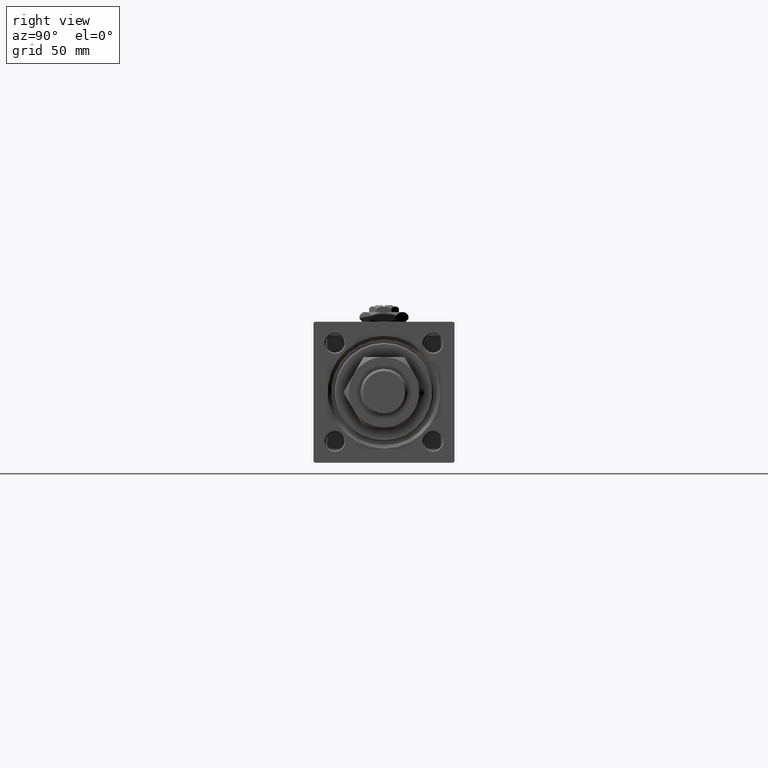
[diagram: clean part render]
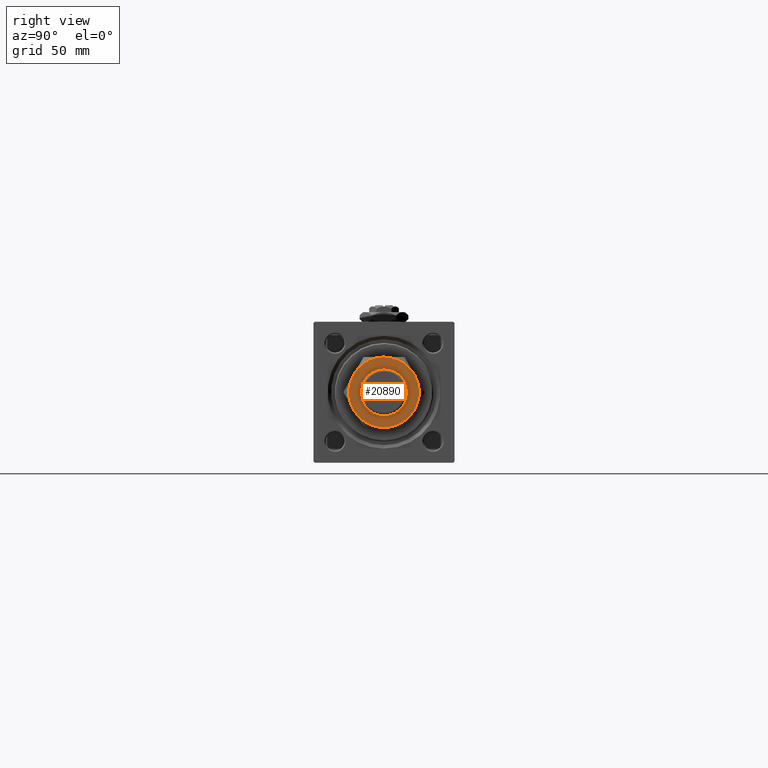
[diagram: same view with one face highlighted and labeled with its STEP entity id]
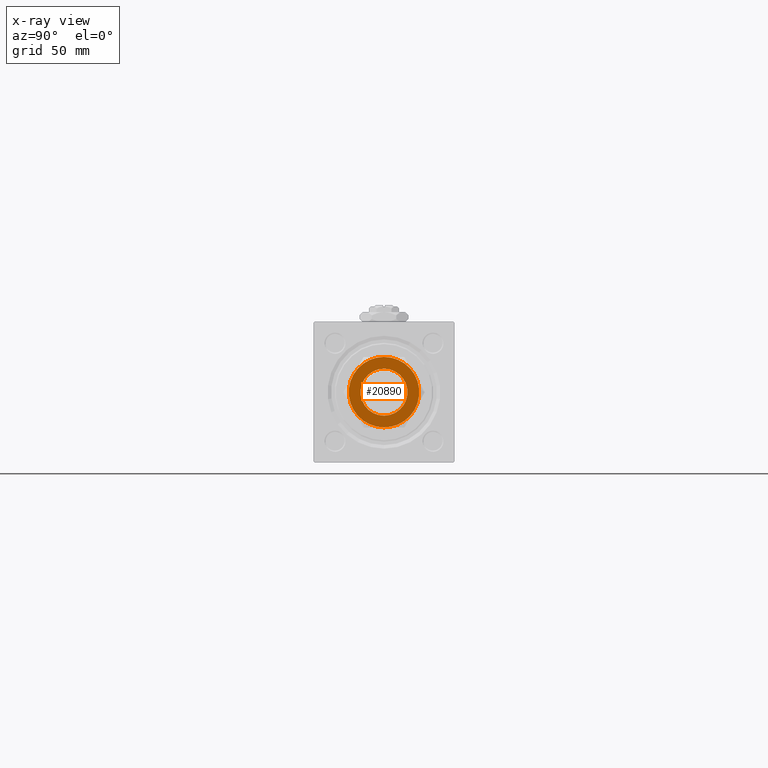
[diagram: x-ray of the same camera — body ghosted, the highlighted face saturated]
A machine part, right view. The second image highlights one B-rep face of the part: STEP entity #20890.
The next image is the same camera in x-ray: the body ghosted, the highlighted face saturated — about 0% of this face is hidden behind the body in this view.
In plain terms, the highlighted planar face has unit normal (1, 0, 0).
Its self-contained STEP definition (entity closure, byte-faithful):
#438 = DIRECTION ( 'NONE',  ( -0.000000000000000000, 0.000000000000000000, -1.000000000000000000 ) ) ;
#696 = DIRECTION ( 'NONE',  ( 1.000000000000000000, 0.000000000000000000, 0.000000000000000000 ) ) ;
#3337 = AXIS2_PLACEMENT_3D ( 'NONE', #32027, #31491, #23370 ) ;
#4751 = CARTESIAN_POINT ( 'NONE',  ( 0.000000000000000000, 0.000000000000000000, 25.00000000000000000 ) ) ;
#5700 = CARTESIAN_POINT ( 'NONE',  ( 14.99999999999999645, 1.502314598737159426E-15, 25.00000000000000000 ) ) ;
#6322 = VERTEX_POINT ( 'NONE', #32133 ) ;
#7202 = DIRECTION ( 'NONE',  ( 1.000000000000000000, 0.000000000000000000, 0.000000000000000000 ) ) ;
#8336 = CIRCLE ( 'NONE', #19613, 14.99999999999999645 ) ;
#8884 = EDGE_CURVE ( 'NONE', #47906, #29441, #50029, .T. ) ;
#9801 = ORIENTED_EDGE ( 'NONE', *, *, #43509, .T. ) ;
#9947 = CIRCLE ( 'NONE', #17712, 9.999999999999998224 ) ;
#10060 = EDGE_CURVE ( 'NONE', #25706, #11389, #29351, .T. ) ;
#10208 = ORIENTED_EDGE ( 'NONE', *, *, #28594, .T. ) ;
#11003 = DIRECTION ( 'NONE',  ( 0.000000000000000000, 0.000000000000000000, 1.000000000000000000 ) ) ;
#11389 = VERTEX_POINT ( 'NONE', #41838 ) ;
#12640 = CARTESIAN_POINT ( 'NONE',  ( 0.000000000000000000, 0.000000000000000000, 25.00000000000000000 ) ) ;
#12707 = EDGE_LOOP ( 'NONE', ( #10208, #12731, #47511, #9801, #47294, #21138 ) ) ;
#12731 = ORIENTED_EDGE ( 'NONE', *, *, #41350, .T. ) ;
#12911 = DIRECTION ( 'NONE',  ( 1.000000000000000000, 0.000000000000000000, 0.000000000000000000 ) ) ;
#13439 = DIRECTION ( 'NONE',  ( 1.000000000000000000, 0.000000000000000000, 0.000000000000000000 ) ) ;
#14028 = DIRECTION ( 'NONE',  ( 0.000000000000000000, -0.000000000000000000, 1.000000000000000000 ) ) ;
#14376 = CARTESIAN_POINT ( 'NONE',  ( 0.000000000000000000, 0.000000000000000000, 25.00000000000000000 ) ) ;
#17712 = AXIS2_PLACEMENT_3D ( 'NONE', #25136, #25942, #34321 ) ;
#18101 = FACE_OUTER_BOUND ( 'NONE', #12707, .T. ) ;
#18191 = DIRECTION ( 'NONE',  ( 0.000000000000000000, -0.000000000000000000, 1.000000000000000000 ) ) ;
#18778 = VERTEX_POINT ( 'NONE', #5700 ) ;
#19471 = EDGE_LOOP ( 'NONE', ( #46274, #52038 ) ) ;
#19613 = AXIS2_PLACEMENT_3D ( 'NONE', #28893, #33479, #13439 ) ;
#19794 = VERTEX_POINT ( 'NONE', #51686 ) ;
#19810 = CIRCLE ( 'NONE', #52653, 14.99999999999999645 ) ;
#20127 = VERTEX_POINT ( 'NONE', #29344 ) ;
#20890 = ADVANCED_FACE ( 'NONE', ( #38657, #18101 ), #34610, .T. ) ;
#21138 = ORIENTED_EDGE ( 'NONE', *, *, #8884, .T. ) ;
#23370 = DIRECTION ( 'NONE',  ( 1.000000000000000000, 0.000000000000000000, 0.000000000000000000 ) ) ;
#24395 = AXIS2_PLACEMENT_3D ( 'NONE', #36180, #44317, #39995 ) ;
#24511 = EDGE_CURVE ( 'NONE', #11389, #25706, #9947, .T. ) ;
#25136 = CARTESIAN_POINT ( 'NONE',  ( 0.000000000000000000, 0.000000000000000000, 25.00000000000000000 ) ) ;
#25706 = VERTEX_POINT ( 'NONE', #31075 ) ;
#25942 = DIRECTION ( 'NONE',  ( -0.000000000000000000, 0.000000000000000000, -1.000000000000000000 ) ) ;
#28594 = EDGE_CURVE ( 'NONE', #29441, #18778, #8336, .T. ) ;
#28893 = CARTESIAN_POINT ( 'NONE',  ( 0.000000000000000000, 0.000000000000000000, 25.00000000000000000 ) ) ;
#29344 = CARTESIAN_POINT ( 'NONE',  ( -7.500000000000000000, 12.99038105676657651, 25.00000000000000000 ) ) ;
#29351 = CIRCLE ( 'NONE', #34545, 9.999999999999998224 ) ;
#29441 = VERTEX_POINT ( 'NONE', #33134 ) ;
#30181 = AXIS2_PLACEMENT_3D ( 'NONE', #14376, #18191, #43611 ) ;
#31075 = CARTESIAN_POINT ( 'NONE',  ( -9.999999999999998224, 1.224646799147353059E-15, 25.00000000000000000 ) ) ;
#31491 = DIRECTION ( 'NONE',  ( 0.000000000000000000, -0.000000000000000000, 1.000000000000000000 ) ) ;
#32027 = CARTESIAN_POINT ( 'NONE',  ( 0.000000000000000000, 0.000000000000000000, 25.00000000000000000 ) ) ;
#32133 = CARTESIAN_POINT ( 'NONE',  ( -14.99999999999999645, 0.000000000000000000, 25.00000000000000000 ) ) ;
#33134 = CARTESIAN_POINT ( 'NONE',  ( 7.500000000000001776, -12.99038105676657473, 25.00000000000000000 ) ) ;
#33479 = DIRECTION ( 'NONE',  ( 0.000000000000000000, -0.000000000000000000, 1.000000000000000000 ) ) ;
#34321 = DIRECTION ( 'NONE',  ( 1.000000000000000000, 0.000000000000000000, 0.000000000000000000 ) ) ;
#34409 = CIRCLE ( 'NONE', #47354, 14.99999999999999645 ) ;
#34545 = AXIS2_PLACEMENT_3D ( 'NONE', #12640, #438, #12911 ) ;
#34610 = PLANE ( 'NONE',  #47090 ) ;
#36180 = CARTESIAN_POINT ( 'NONE',  ( 0.000000000000000000, 0.000000000000000000, 25.00000000000000000 ) ) ;
#36320 = CARTESIAN_POINT ( 'NONE',  ( -7.500000000000000888, -12.99038105676657828, 25.00000000000000000 ) ) ;
#37007 = DIRECTION ( 'NONE',  ( 0.000000000000000000, -0.000000000000000000, 1.000000000000000000 ) ) ;
#37328 = CIRCLE ( 'NONE', #24395, 14.99999999999999645 ) ;
#38657 = FACE_BOUND ( 'NONE', #19471, .T. ) ;
#39995 = DIRECTION ( 'NONE',  ( 1.000000000000000000, 0.000000000000000000, 0.000000000000000000 ) ) ;
#40519 = CARTESIAN_POINT ( 'NONE',  ( 0.000000000000000000, 0.000000000000000000, 25.00000000000000000 ) ) ;
#41350 = EDGE_CURVE ( 'NONE', #18778, #19794, #34409, .T. ) ;
#41838 = CARTESIAN_POINT ( 'NONE',  ( 9.999999999999998224, 0.000000000000000000, 25.00000000000000000 ) ) ;
#43080 = EDGE_CURVE ( 'NONE', #19794, #20127, #43989, .T. ) ;
#43509 = EDGE_CURVE ( 'NONE', #20127, #6322, #19810, .T. ) ;
#43611 = DIRECTION ( 'NONE',  ( 1.000000000000000000, 0.000000000000000000, 0.000000000000000000 ) ) ;
#43989 = CIRCLE ( 'NONE', #3337, 14.99999999999999645 ) ;
#44317 = DIRECTION ( 'NONE',  ( 0.000000000000000000, -0.000000000000000000, 1.000000000000000000 ) ) ;
#46274 = ORIENTED_EDGE ( 'NONE', *, *, #24511, .T. ) ;
#47056 = DIRECTION ( 'NONE',  ( 1.000000000000000000, 0.000000000000000000, -0.000000000000000000 ) ) ;
#47090 = AXIS2_PLACEMENT_3D ( 'NONE', #51123, #14028, #47056 ) ;
#47294 = ORIENTED_EDGE ( 'NONE', *, *, #50606, .T. ) ;
#47354 = AXIS2_PLACEMENT_3D ( 'NONE', #40519, #11003, #7202 ) ;
#47511 = ORIENTED_EDGE ( 'NONE', *, *, #43080, .T. ) ;
#47906 = VERTEX_POINT ( 'NONE', #36320 ) ;
#50029 = CIRCLE ( 'NONE', #30181, 14.99999999999999645 ) ;
#50606 = EDGE_CURVE ( 'NONE', #6322, #47906, #37328, .T. ) ;
#51123 = CARTESIAN_POINT ( 'NONE',  ( 0.000000000000000000, 0.000000000000000000, 25.00000000000000000 ) ) ;
#51686 = CARTESIAN_POINT ( 'NONE',  ( 7.499999999999998224, 12.99038105676657651, 25.00000000000000000 ) ) ;
#52038 = ORIENTED_EDGE ( 'NONE', *, *, #10060, .T. ) ;
#52653 = AXIS2_PLACEMENT_3D ( 'NONE', #4751, #37007, #696 ) ;